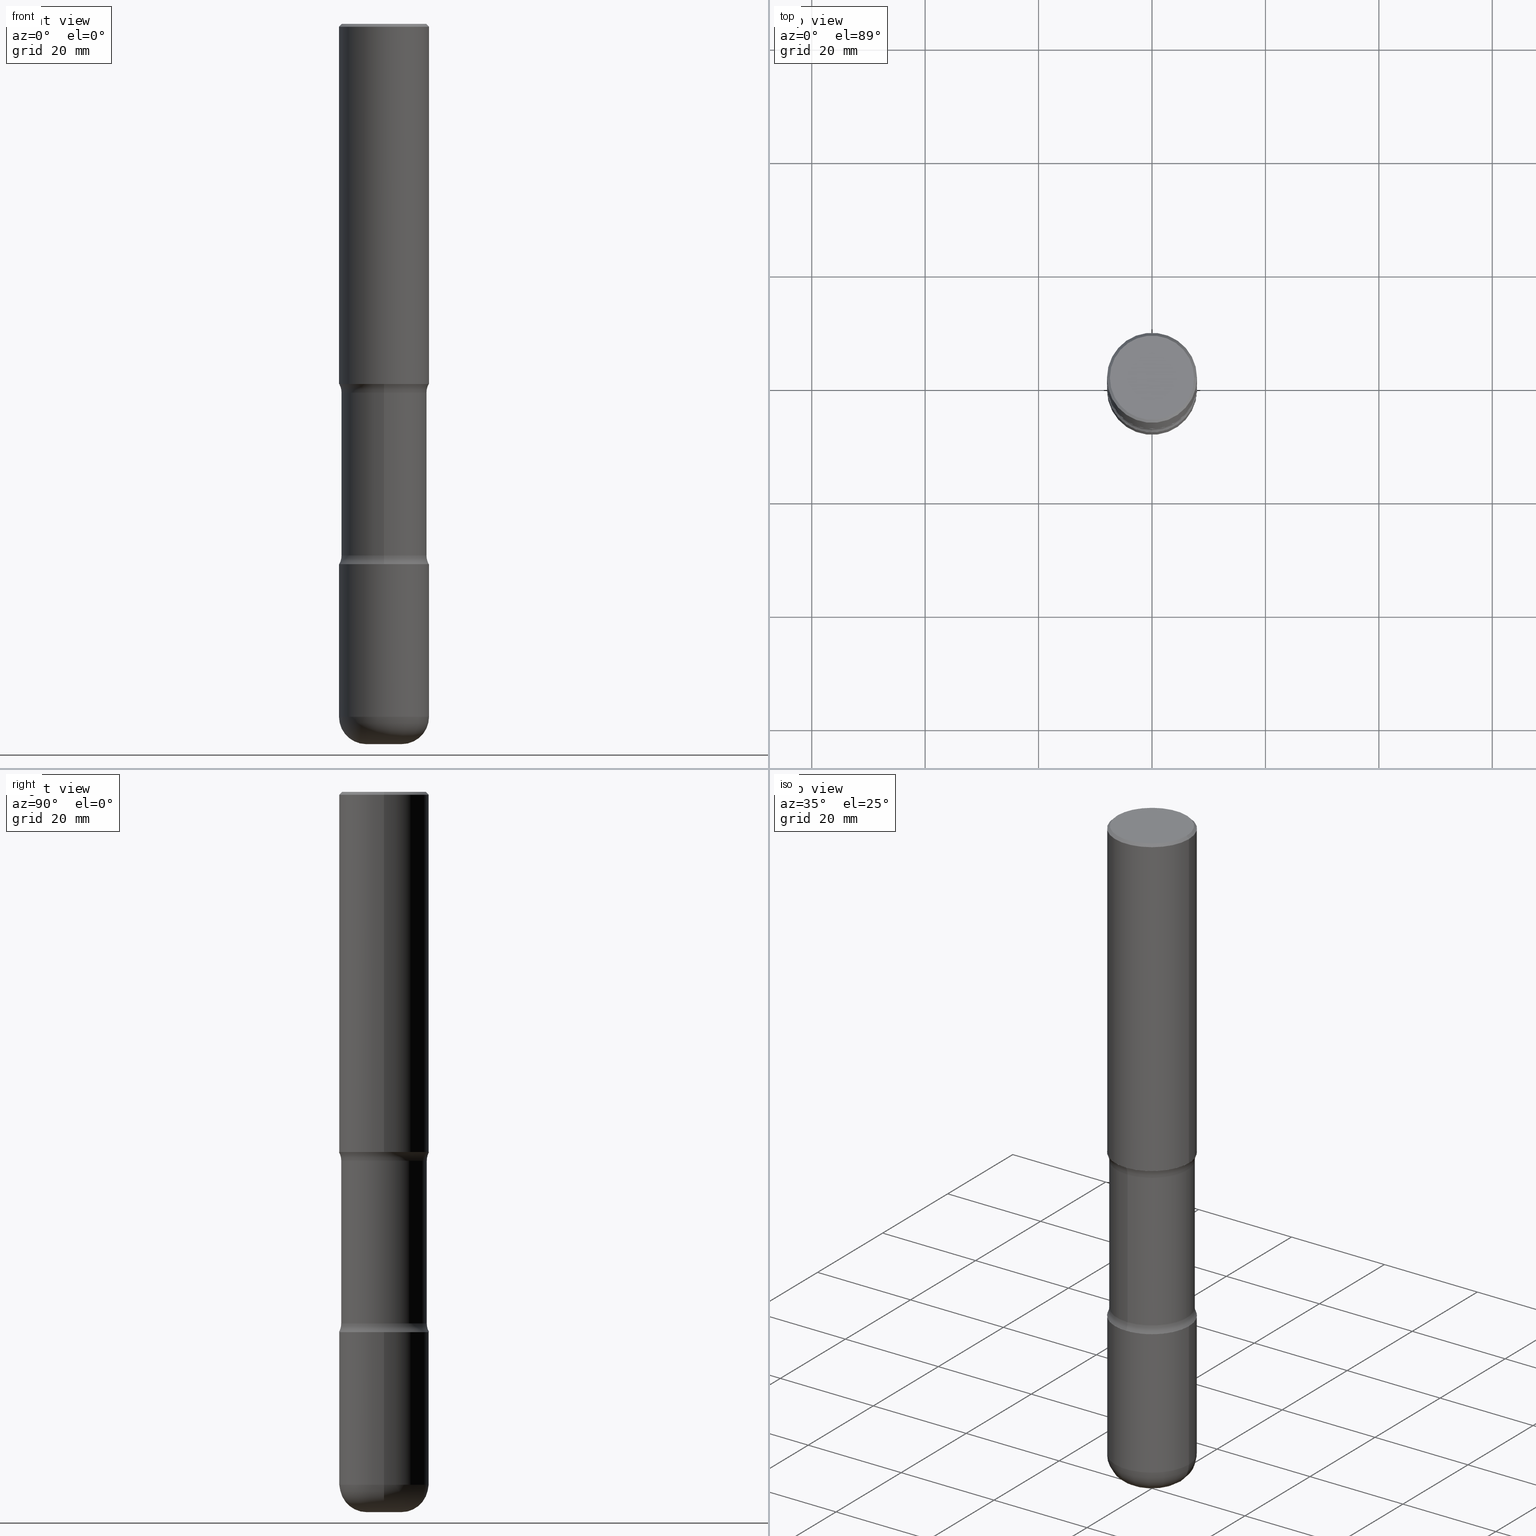
[diagram: canonical four-view strip — front | top / right | iso, engineering-drawing reading convention]
A machine part, canonical four-view strip (front | top / right | iso — engineering-drawing reading convention). The complete STEP part file that produces these views, byte-faithful:
ISO-10303-21;
HEADER;
FILE_DESCRIPTION (( 'STEP AP203' ),
    '1' );
FILE_NAME ('37921.STEP',
    '2024-03-02T01:26:36',
    ( '' ),
    ( '' ),
    'SwSTEP 2.0',
    'SolidWorks 2023',
    '' );
FILE_SCHEMA (( 'CONFIG_CONTROL_DESIGN' ));
ENDSEC;

DATA;
#1 = DIRECTION ( 'NONE',  ( 6.982962677686265133E-15, 1.000000000000000000, -3.680805717779217644E-15 ) ) ;
#2 = EDGE_LOOP ( 'NONE', ( #324, #459, #457, #39 ) ) ;
#3 = CARTESIAN_POINT ( 'NONE',  ( 0.1225000000000003308, -1.831281962223229977E-14, -5.000000000000000000 ) ) ;
#4 = CARTESIAN_POINT ( 'NONE',  ( -1.043851414335219820E-46, 1.490343170380447200E-32, 4.268512490100411279E-18 ) ) ;
#5 = AXIS2_PLACEMENT_3D ( 'NONE', #223, #539, #451 ) ;
#6 = AXIS2_PLACEMENT_3D ( 'NONE', #174, #353, #215 ) ;
#7 = CARTESIAN_POINT ( 'NONE',  ( 4.890937612370289799E-31, -6.982962677686315028E-17, -0.02000000000000006981 ) ) ;
#8 = PERSON_AND_ORGANIZATION ( #476, #208 ) ;
#9 = DIRECTION ( 'NONE',  ( 2.521457479434076939E-29, -3.382661233743975076E-15, -1.000000000000000000 ) ) ;
#10 = PERSON_AND_ORGANIZATION_ROLE ( 'creator' ) ;
#11 = DIRECTION ( 'NONE',  ( -6.982962677686265922E-15, -1.000000000000000000, 3.382661233743974681E-15 ) ) ;
#12 = DIRECTION ( 'NONE',  ( -2.445468806185136597E-29, 3.491481338843145583E-15, 1.000000000000000000 ) ) ;
#13 = DIRECTION ( 'NONE',  ( -2.445468806185136877E-29, 3.491481338843145188E-15, 1.000000000000000000 ) ) ;
#14 = AXIS2_PLACEMENT_3D ( 'NONE', #59, #304, #483 ) ;
#15 = CARTESIAN_POINT ( 'NONE',  ( 2.182175836777050644E-15, 0.3124999999999870104, -3.750000000000000888 ) ) ;
#16 = AXIS2_PLACEMENT_3D ( 'NONE', #446, #17, #171 ) ;
#17 = DIRECTION ( 'NONE',  ( 2.438088387897960049E-29, -3.491481338843145188E-15, -1.000000000000000000 ) ) ;
#18 = DIRECTION ( 'NONE',  ( 0.000000000000000000, 0.000000000000000000, 1.000000000000000000 ) ) ;
#19 = DIRECTION ( 'NONE',  ( 1.000000000000000000, -6.982962677686266711E-15, 0.000000000000000000 ) ) ;
#20 = PLANE ( 'NONE',  #160 ) ;
#21 = PERSON_AND_ORGANIZATION_ROLE ( 'classification_officer' ) ;
#22 = TOROIDAL_SURFACE ( 'NONE', #448, 0.4218750000000001110, 0.1250000000000001388 ) ;
#23 = EDGE_CURVE ( 'NONE', #423, #556, #99, .T. ) ;
#24 = APPROVAL_STATUS ( 'not_yet_approved' ) ;
#25 = DIRECTION ( 'NONE',  ( -2.445468806185136597E-29, 3.491481338843145583E-15, 1.000000000000000000 ) ) ;
#26 = ORIENTED_EDGE ( 'NONE', *, *, #55, .T. ) ;
#27 = AXIS2_PLACEMENT_3D ( 'NONE', #356, #228, #179 ) ;
#28 = CIRCLE ( 'NONE', #109, 0.1250000000000001388 ) ;
#29 = VERTEX_POINT ( 'NONE', #477 ) ;
#30 = DIRECTION ( 'NONE',  ( -2.445468806185136877E-29, 3.491481338843145188E-15, 1.000000000000000000 ) ) ;
#31 = EDGE_CURVE ( 'NONE', #423, #374, #40, .T. ) ;
#32 = EDGE_LOOP ( 'NONE', ( #72, #205, #194, #391 ) ) ;
#33 = DIRECTION ( 'NONE',  ( 2.521457479434076939E-29, -3.382661233743975076E-15, -1.000000000000000000 ) ) ;
#34 = EDGE_LOOP ( 'NONE', ( #375, #253 ) ) ;
#35 = DIRECTION ( 'NONE',  ( -2.445468806185136597E-29, 3.491481338843145583E-15, 1.000000000000000000 ) ) ;
#36 = EDGE_CURVE ( 'NONE', #272, #470, #235, .T. ) ;
#37 = ADVANCED_FACE ( 'NONE', ( #398 ), #502, .T. ) ;
#38 = CONICAL_SURFACE ( 'NONE', #124, 0.3124999999999998890, 0.7853981633974479459 ) ;
#39 = ORIENTED_EDGE ( 'NONE', *, *, #434, .F. ) ;
#40 = CIRCLE ( 'NONE', #169, 0.1899999999999998634 ) ;
#41 = CYLINDRICAL_SURFACE ( 'NONE', #492, 0.3125000000000001665 ) ;
#42 = APPROVAL_PERSON_ORGANIZATION ( #8, #397, #145 ) ;
#43 = ORIENTED_EDGE ( 'NONE', *, *, #302, .F. ) ;
#44 = CARTESIAN_POINT ( 'NONE',  ( -2.894272592809775342E-15, -0.4218750000000130451, -3.689484635215506625 ) ) ;
#45 = CARTESIAN_POINT ( 'NONE',  ( 9.170508023194261117E-29, -1.309305502066179584E-14, -3.749999999999999556 ) ) ;
#46 = AXIS2_PLACEMENT_3D ( 'NONE', #50, #98, #53 ) ;
#47 = EDGE_CURVE ( 'NONE', #464, #296, #472, .T. ) ;
#48 = CARTESIAN_POINT ( 'NONE',  ( 4.890937612370289799E-31, -6.982962677686315028E-17, -0.02000000000000006981 ) ) ;
#49 = PERSON_AND_ORGANIZATION ( #476, #208 ) ;
#50 = CARTESIAN_POINT ( 'NONE',  ( 6.166278489433880529E-29, -9.076584013649411488E-15, -2.560515364784490711 ) ) ;
#51 = DIRECTION ( 'NONE',  ( -2.445468806185136597E-29, 3.491481338843145583E-15, 1.000000000000000000 ) ) ;
#52 = PERSON_AND_ORGANIZATION_ROLE ( 'design_owner' ) ;
#53 = DIRECTION ( 'NONE',  ( 6.982962677686265922E-15, 1.000000000000000000, -3.382661233743975076E-15 ) ) ;
#54 = CC_DESIGN_DATE_AND_TIME_ASSIGNMENT ( #373, #494, ( #473 ) ) ;
#55 = EDGE_CURVE ( 'NONE', #199, #514, #345, .T. ) ;
#56 = DIRECTION ( 'NONE',  ( 1.000000000000000000, -6.982962677686265922E-15, 4.883557194083112340E-29 ) ) ;
#57 = PERSON_AND_ORGANIZATION ( #476, #208 ) ;
#58 = AXIS2_PLACEMENT_3D ( 'NONE', #390, #84, #475 ) ;
#59 = CARTESIAN_POINT ( 'NONE',  ( 2.945937379648955300E-15, 0.4218749999999909517, -2.560515364784492487 ) ) ;
#60 = CIRCLE ( 'NONE', #418, 0.3125000000000002776 ) ;
#61 = FACE_OUTER_BOUND ( 'NONE', #32, .T. ) ;
#62 = CALENDAR_DATE ( 2024, 1, 3 ) ;
#63 = ORIENTED_EDGE ( 'NONE', *, *, #384, .T. ) ;
#64 = CARTESIAN_POINT ( 'NONE',  ( 4.890937612370289799E-31, -6.982962677686315028E-17, -0.02000000000000006981 ) ) ;
#65 = PERSON_AND_ORGANIZATION ( #476, #208 ) ;
#66 = ORIENTED_EDGE ( 'NONE', *, *, #358, .T. ) ;
#67 = PERSON_AND_ORGANIZATION_ROLE ( 'creator' ) ;
#68 = ORIENTED_EDGE ( 'NONE', *, *, #456, .T. ) ;
#69 = VERTEX_POINT ( 'NONE', #527 ) ;
#70 = DIRECTION ( 'NONE',  ( 1.000000000000000000, -6.982962677686266711E-15, 0.000000000000000000 ) ) ;
#71 = EDGE_CURVE ( 'NONE', #322, #243, #320, .T. ) ;
#72 = ORIENTED_EDGE ( 'NONE', *, *, #560, .F. ) ;
#73 = DIRECTION ( 'NONE',  ( 2.521457479434076939E-29, -3.382661233743975076E-15, -1.000000000000000000 ) ) ;
#74 = AXIS2_PLACEMENT_3D ( 'NONE', #262, #178, #474 ) ;
#75 = ORIENTED_EDGE ( 'NONE', *, *, #419, .F. ) ;
#76 = CYLINDRICAL_SURFACE ( 'NONE', #501, 0.2968750000000000000 ) ;
#77 = EDGE_LOOP ( 'NONE', ( #189, #276 ) ) ;
#78 = CARTESIAN_POINT ( 'NONE',  ( -1.043851414335219820E-46, 1.490343170380447200E-32, 4.268512490100411279E-18 ) ) ;
#79 = EDGE_CURVE ( 'NONE', #272, #290, #28, .T. ) ;
#80 = ORIENTED_EDGE ( 'NONE', *, *, #211, .F. ) ;
#81 = CARTESIAN_POINT ( 'NONE',  ( 9.170508023194261117E-29, -1.309305502066179584E-14, -3.749999999999999556 ) ) ;
#82 = CIRCLE ( 'NONE', #305, 0.2968750000000000000 ) ;
#83 = ORIENTED_EDGE ( 'NONE', *, *, #79, .F. ) ;
#84 = DIRECTION ( 'NONE',  ( -2.445468806185136597E-29, 3.491481338843145583E-15, 1.000000000000000000 ) ) ;
#85 = CARTESIAN_POINT ( 'NONE',  ( -0.3125000000000000000, 2.220446049250313081E-15, -1.537167215704658232E-29 ) ) ;
#86 = DIRECTION ( 'NONE',  ( -2.445468806185136877E-29, 3.491481338843145188E-15, 1.000000000000000000 ) ) ;
#87 = DIRECTION ( 'NONE',  ( 1.000000000000000000, -6.982962677686266711E-15, 0.000000000000000000 ) ) ;
#88 = ADVANCED_FACE ( 'NONE', ( #224 ), #294, .F. ) ;
#89 =( NAMED_UNIT ( * ) SI_UNIT ( $, .STERADIAN. ) SOLID_ANGLE_UNIT ( ) );
#90 = CARTESIAN_POINT ( 'NONE',  ( 2.073067044938233492E-15, 0.2968749999999827360, -5.000000000000000888 ) ) ;
#91 = PLANE ( 'NONE',  #16 ) ;
#92 = DIRECTION ( 'NONE',  ( -2.445468806185136597E-29, 3.491481338843145583E-15, 1.000000000000000000 ) ) ;
#93 = CARTESIAN_POINT ( 'NONE',  ( -2.090307983695922804E-15, -0.2968750000000128786, -3.689484635215507069 ) ) ;
#94 = CARTESIAN_POINT ( 'NONE',  ( 9.170508023194261117E-29, -1.309305502066179584E-14, -3.749999999999999556 ) ) ;
#95 = ADVANCED_FACE ( 'NONE', ( #349 ), #91, .F. ) ;
#96 = DIRECTION ( 'NONE',  ( 2.521457479434076939E-29, -3.382661233743975076E-15, -1.000000000000000000 ) ) ;
#97 =( NAMED_UNIT ( * ) PLANE_ANGLE_UNIT ( ) SI_UNIT ( $, .RADIAN. ) );
#98 = DIRECTION ( 'NONE',  ( 2.521457479434076939E-29, -3.382661233743975076E-15, -1.000000000000000000 ) ) ;
#99 = CIRCLE ( 'NONE', #454, 0.1225000000000003308 ) ;
#100 = CARTESIAN_POINT ( 'NONE',  ( -0.3125000000000001665, 2.220446049250314264E-15, -1.537167215704658792E-29 ) ) ;
#101 = AXIS2_PLACEMENT_3D ( 'NONE', #106, #127, #432 ) ;
#102 = FACE_OUTER_BOUND ( 'NONE', #77, .T. ) ;
#103 = VECTOR ( 'NONE', #489, 39.37007874015748143 ) ;
#104 = EDGE_LOOP ( 'NONE', ( #117, #275, #554, #75 ) ) ;
#105 = CC_DESIGN_PERSON_AND_ORGANIZATION_ASSIGNMENT ( #326, #67, ( #236 ) ) ;
#106 = CARTESIAN_POINT ( 'NONE',  ( 0.000000000000000000, 0.000000000000000000, 0.000000000000000000 ) ) ;
#107 = VERTEX_POINT ( 'NONE', #93 ) ;
#108 = CIRCLE ( 'NONE', #292, 0.3124999999999998890 ) ;
#109 = AXIS2_PLACEMENT_3D ( 'NONE', #444, #255, #480 ) ;
#110 = AXIS2_PLACEMENT_3D ( 'NONE', #407, #528, #134 ) ;
#111 = ORIENTED_EDGE ( 'NONE', *, *, #79, .T. ) ;
#112 = ORIENTED_EDGE ( 'NONE', *, *, #417, .F. ) ;
#113 = ORIENTED_EDGE ( 'NONE', *, *, #36, .F. ) ;
#114 = DIRECTION ( 'NONE',  ( -2.445468806185136597E-29, 3.491481338843145583E-15, 1.000000000000000000 ) ) ;
#115 = TOROIDAL_SURFACE ( 'NONE', #46, 0.4218750000000000555, 0.1250000000000000000 ) ;
#116 = AXIS2_PLACEMENT_3D ( 'NONE', #433, #136, #265 ) ;
#117 = ORIENTED_EDGE ( 'NONE', *, *, #151, .T. ) ;
#118 = ADVANCED_FACE ( 'NONE', ( #439 ), #534, .F. ) ;
#119 = FACE_OUTER_BOUND ( 'NONE', #544, .T. ) ;
#120 = ORIENTED_EDGE ( 'NONE', *, *, #23, .T. ) ;
#121 = DIRECTION ( 'NONE',  ( -1.000000000000000000, 7.105427357601003436E-15, 0.000000000000000000 ) ) ;
#122 = ORIENTED_EDGE ( 'NONE', *, *, #553, .T. ) ;
#123 = CARTESIAN_POINT ( 'NONE',  ( 1.232232987248685960E-28, -1.732138156284176685E-14, -5.000000000000000000 ) ) ;
#124 = AXIS2_PLACEMENT_3D ( 'NONE', #48, #218, #270 ) ;
#125 = LINE ( 'NONE', #85, #103 ) ;
#126 = ORIENTED_EDGE ( 'NONE', *, *, #55, .F. ) ;
#127 = DIRECTION ( 'NONE',  ( -2.445468806185136597E-29, 3.491481338843145583E-15, 1.000000000000000000 ) ) ;
#128 = CC_DESIGN_APPROVAL ( #203, ( #352 ) ) ;
#129 = ADVANCED_FACE ( 'NONE', ( #219 ), #438, .T. ) ;
#130 = LENGTH_MEASURE_WITH_UNIT ( LENGTH_MEASURE( 0.02539999999999999897 ), #531 );
#131 = MANIFOLD_SOLID_BREP ( 'Body-Move/Copy2[4]', #557 ) ;
#132 = PLANE ( 'NONE',  #170 ) ;
#133 = CARTESIAN_POINT ( 'NONE',  ( 9.170508023194261117E-29, -1.309305502066179584E-14, -3.749999999999999556 ) ) ;
#134 = DIRECTION ( 'NONE',  ( 6.860497997771529985E-15, 1.000000000000000000, 0.000000000000000000 ) ) ;
#135 = FACE_OUTER_BOUND ( 'NONE', #549, .T. ) ;
#136 = DIRECTION ( 'NONE',  ( 2.521457479434076939E-29, -3.382661233743974681E-15, -1.000000000000000000 ) ) ;
#137 = CIRCLE ( 'NONE', #242, 0.3125000000000001665 ) ;
#138 = EDGE_CURVE ( 'NONE', #514, #455, #530, .T. ) ;
#139 = DIRECTION ( 'NONE',  ( 1.000000000000000000, -6.982962677686262766E-15, 0.000000000000000000 ) ) ;
#140 = CIRCLE ( 'NONE', #110, 0.1250000000000000000 ) ;
#141 = CARTESIAN_POINT ( 'NONE',  ( 1.176270495775050811E-28, -1.679402523983553013E-14, -4.810000000000000497 ) ) ;
#142 = COORDINATED_UNIVERSAL_TIME_OFFSET ( 5, 0, .BEHIND. ) ;
#143 = CARTESIAN_POINT ( 'NONE',  ( 2.073067044938200360E-15, 0.2968749999999871214, -3.689484635215509289 ) ) ;
#144 = DIRECTION ( 'NONE',  ( 2.521457479434076939E-29, -3.382661233743975076E-15, -1.000000000000000000 ) ) ;
#145 = APPROVAL_ROLE ( '' ) ;
#146 = CARTESIAN_POINT ( 'NONE',  ( 9.017921104037724021E-29, -1.288835204215942242E-14, -3.689484635215508401 ) ) ;
#147 = TOROIDAL_SURFACE ( 'NONE', #357, 0.1225000000000003031, 0.1899999999999998912 ) ;
#148 = ORIENTED_EDGE ( 'NONE', *, *, #452, .F. ) ;
#149 = EDGE_LOOP ( 'NONE', ( #120, #150, #233, #382 ) ) ;
#150 = ORIENTED_EDGE ( 'NONE', *, *, #417, .T. ) ;
#151 = EDGE_CURVE ( 'NONE', #374, #467, #227, .T. ) ;
#152 = EDGE_LOOP ( 'NONE', ( #510, #421, #380, #287 ) ) ;
#153 = ADVANCED_FACE ( 'NONE', ( #359 ), #184, .T. ) ;
#154 = CIRCLE ( 'NONE', #334, 0.1225000000000003308 ) ;
#155 = ORIENTED_EDGE ( 'NONE', *, *, #500, .T. ) ;
#156 = ORIENTED_EDGE ( 'NONE', *, *, #311, .F. ) ;
#157 = CARTESIAN_POINT ( 'NONE',  ( 0.3124999999999998890, -2.213735251080466123E-15, -0.02000000000000006981 ) ) ;
#158 = ORIENTED_EDGE ( 'NONE', *, *, #519, .F. ) ;
#159 = DIRECTION ( 'NONE',  ( 1.000000000000000000, -6.982962677686264344E-15, 0.000000000000000000 ) ) ;
#160 = AXIS2_PLACEMENT_3D ( 'NONE', #529, #533, #183 ) ;
#161 = AXIS2_PLACEMENT_3D ( 'NONE', #81, #335, #427 ) ;
#162 = ORIENTED_EDGE ( 'NONE', *, *, #138, .F. ) ;
#163 = DIRECTION ( 'NONE',  ( 1.000000000000000000, -6.860497997771530774E-15, 4.842131541558068249E-29 ) ) ;
#164 = ORIENTED_EDGE ( 'NONE', *, *, #358, .F. ) ;
#165 = CARTESIAN_POINT ( 'NONE',  ( 1.176270495775050811E-28, -1.679402523983553013E-14, -4.810000000000000497 ) ) ;
#166 = EDGE_LOOP ( 'NONE', ( #522, #66, #499, #551 ) ) ;
#167 = DIRECTION ( 'NONE',  ( 2.521457479434076939E-29, -3.382661233743975076E-15, -1.000000000000000000 ) ) ;
#168 = EDGE_CURVE ( 'NONE', #508, #542, #125, .T. ) ;
#169 = AXIS2_PLACEMENT_3D ( 'NONE', #435, #486, #87 ) ;
#170 = AXIS2_PLACEMENT_3D ( 'NONE', #300, #479, #366 ) ;
#171 = DIRECTION ( 'NONE',  ( -1.000000000000000000, 6.982962677686265922E-15, -4.876176775795935793E-29 ) ) ;
#172 = APPROVAL_DATE_TIME ( #490, #397 ) ;
#173 = APPROVAL_PERSON_ORGANIZATION ( #188, #213, #369 ) ;
#174 = CARTESIAN_POINT ( 'NONE',  ( 6.018686173901665994E-29, -8.864728478481826400E-15, -2.499999999999999556 ) ) ;
#175 = APPROVAL_STATUS ( 'not_yet_approved' ) ;
#176 = PLANE ( 'NONE',  #281 ) ;
#177 = EDGE_CURVE ( 'NONE', #296, #464, #60, .T. ) ;
#178 = DIRECTION ( 'NONE',  ( 2.521457479434076939E-29, -3.382661233743975076E-15, -1.000000000000000000 ) ) ;
#179 = DIRECTION ( 'NONE',  ( 6.982962677686266711E-15, 1.000000000000000000, -3.680805717779217644E-15 ) ) ;
#180 = DIRECTION ( 'NONE',  ( 1.000000000000000000, -6.982962677686264344E-15, 0.000000000000000000 ) ) ;
#181 = VECTOR ( 'NONE', #30, 39.37007874015748143 ) ;
#182 = PERSON_AND_ORGANIZATION ( #476, #208 ) ;
#183 = DIRECTION ( 'NONE',  ( 1.000000000000000000, -6.982962677686265922E-15, 4.876176775795935793E-29 ) ) ;
#184 = PLANE ( 'NONE',  #293 ) ;
#185 = CARTESIAN_POINT ( 'NONE',  ( -0.1225000000000003308, -1.558028551674741034E-14, -5.000000000000000000 ) ) ;
#186 = FACE_OUTER_BOUND ( 'NONE', #248, .T. ) ;
#187 = CIRCLE ( 'NONE', #512, 0.3125000000000002220 ) ;
#188 = PERSON_AND_ORGANIZATION ( #476, #208 ) ;
#189 = ORIENTED_EDGE ( 'NONE', *, *, #36, .T. ) ;
#190 = DIRECTION ( 'NONE',  ( 6.982962677686265922E-15, 1.000000000000000000, -3.382661233743975076E-15 ) ) ;
#191 = EDGE_CURVE ( 'NONE', #556, #423, #154, .T. ) ;
#192 = ADVANCED_FACE ( 'NONE', ( #408 ), #20, .F. ) ;
#193 = SECURITY_CLASSIFICATION_LEVEL ( 'unclassified' ) ;
#194 = ORIENTED_EDGE ( 'NONE', *, *, #302, .T. ) ;
#195 = UNCERTAINTY_MEASURE_WITH_UNIT (LENGTH_MEASURE( 1.000000000000000082E-05 ), #312, 'distance_accuracy_value', 'NONE');
#196 = AXIS2_PLACEMENT_3D ( 'NONE', #45, #96, #258 ) ;
#197 = AXIS2_PLACEMENT_3D ( 'NONE', #465, #200, #121 ) ;
#198 = LOCAL_TIME ( 20, 26, 36.00000000000000000, #316 ) ;
#199 = VERTEX_POINT ( 'NONE', #437 ) ;
#200 = DIRECTION ( 'NONE',  ( 7.105427357601001859E-15, 1.000000000000000000, -3.491481338843145583E-15 ) ) ;
#201 = ORIENTED_EDGE ( 'NONE', *, *, #513, .T. ) ;
#202 = DIRECTION ( 'NONE',  ( 6.982962677686266711E-15, 1.000000000000000000, -3.680805717779217644E-15 ) ) ;
#203 = APPROVAL ( #360, 'UNSPECIFIED' ) ;
#204 = DIRECTION ( 'NONE',  ( -2.445468806185136597E-29, 3.491481338843145583E-15, 1.000000000000000000 ) ) ;
#205 = ORIENTED_EDGE ( 'NONE', *, *, #513, .F. ) ;
#206 = CARTESIAN_POINT ( 'NONE',  ( -0.3124999999999998890, 2.112346210000094260E-15, -0.02000000000000006981 ) ) ;
#207 = AXIS2_PLACEMENT_3D ( 'NONE', #44, #163, #425 ) ;
#208 = ORGANIZATION ( 'UNSPECIFIED', 'UNSPECIFIED', '' ) ;
#209 = ORIENTED_EDGE ( 'NONE', *, *, #23, .F. ) ;
#210 = CARTESIAN_POINT ( 'NONE',  ( -0.3125000000000001665, -1.457357919058521389E-14, -4.810000000000000497 ) ) ;
#211 = EDGE_CURVE ( 'NONE', #290, #107, #376, .T. ) ;
#212 = ORIENTED_EDGE ( 'NONE', *, *, #31, .T. ) ;
#213 = APPROVAL ( #24, 'UNSPECIFIED' ) ;
#214 = CYLINDRICAL_SURFACE ( 'NONE', #58, 0.3125000000000001665 ) ;
#215 = DIRECTION ( 'NONE',  ( 6.982962677686265922E-15, 1.000000000000000000, -3.496765431890253764E-15 ) ) ;
#216 = CIRCLE ( 'NONE', #161, 0.3125000000000001665 ) ;
#217 = DATE_AND_TIME ( #395, #307 ) ;
#218 = DIRECTION ( 'NONE',  ( 2.445468806185136597E-29, -3.491481338843145583E-15, -1.000000000000000000 ) ) ;
#219 = FACE_OUTER_BOUND ( 'NONE', #149, .T. ) ;
#220 = FACE_OUTER_BOUND ( 'NONE', #271, .T. ) ;
#221 = DIRECTION ( 'NONE',  ( -2.445468806185136597E-29, 3.491481338843145583E-15, 1.000000000000000000 ) ) ;
#222 = APPLICATION_PROTOCOL_DEFINITION ( 'international standard', 'config_control_design', 1994, #469 ) ;
#223 = CARTESIAN_POINT ( 'NONE',  ( 1.232232987248685960E-28, -1.732138156284176685E-14, -5.000000000000000000 ) ) ;
#224 = FACE_OUTER_BOUND ( 'NONE', #34, .T. ) ;
#225 = AXIS2_PLACEMENT_3D ( 'NONE', #247, #33, #202 ) ;
#226 = CALENDAR_DATE ( 2024, 1, 3 ) ;
#227 = CIRCLE ( 'NONE', #547, 0.3125000000000002220 ) ;
#228 = DIRECTION ( 'NONE',  ( 2.521457479434076939E-29, -3.382661233743975076E-15, -1.000000000000000000 ) ) ;
#229 = PERSON_AND_ORGANIZATION ( #476, #208 ) ;
#230 = ADVANCED_FACE ( 'NONE', ( #135 ), #38, .T. ) ;
#231 = EDGE_LOOP ( 'NONE', ( #112, #559, #212, #158 ) ) ;
#232 = CARTESIAN_POINT ( 'NONE',  ( 0.3125000000000001665, -1.527523085743875418E-14, -3.749999999999999556 ) ) ;
#233 = ORIENTED_EDGE ( 'NONE', *, *, #151, .F. ) ;
#234 = VECTOR ( 'NONE', #309, 39.37007874015748143 ) ;
#235 = CIRCLE ( 'NONE', #196, 0.3125000000000001665 ) ;
#236 = PRODUCT_DEFINITION_FORMATION_WITH_SPECIFIED_SOURCE ( 'ANY', '', #393, .NOT_KNOWN. ) ;
#237 = ADVANCED_FACE ( 'NONE', ( #186 ), #115, .F. ) ;
#238 = ORIENTED_EDGE ( 'NONE', *, *, #419, .T. ) ;
#239 = ORIENTED_EDGE ( 'NONE', *, *, #560, .T. ) ;
#240 = FACE_OUTER_BOUND ( 'NONE', #428, .T. ) ;
#241 = ORIENTED_EDGE ( 'NONE', *, *, #71, .T. ) ;
#242 = AXIS2_PLACEMENT_3D ( 'NONE', #552, #114, #291 ) ;
#243 = VERTEX_POINT ( 'NONE', #488 ) ;
#244 = DIRECTION ( 'NONE',  ( -2.445468806185136597E-29, 3.491481338843145583E-15, 1.000000000000000000 ) ) ;
#245 = CC_DESIGN_PERSON_AND_ORGANIZATION_ASSIGNMENT ( #229, #269, ( #236 ) ) ;
#246 = ORIENTED_EDGE ( 'NONE', *, *, #289, .F. ) ;
#247 = CARTESIAN_POINT ( 'NONE',  ( 6.171273093058203090E-29, -9.069431456984199816E-15, -2.560515364784490711 ) ) ;
#248 = EDGE_LOOP ( 'NONE', ( #156, #239, #385, #43 ) ) ;
#249 = CARTESIAN_POINT ( 'NONE',  ( -2.143905624303545238E-15, -0.3125000000000091593, -2.499999999999998668 ) ) ;
#250 = EDGE_CURVE ( 'NONE', #69, #290, #400, .T. ) ;
#251 = ADVANCED_FACE ( 'NONE', ( #220 ), #317, .T. ) ;
#252 =( GEOMETRIC_REPRESENTATION_CONTEXT ( 3 ) GLOBAL_UNCERTAINTY_ASSIGNED_CONTEXT ( ( #195 ) ) GLOBAL_UNIT_ASSIGNED_CONTEXT ( ( #312, #97, #89 ) ) REPRESENTATION_CONTEXT ( 'NONE', 'WORKASPACE' ) );
#253 = ORIENTED_EDGE ( 'NONE', *, *, #47, .F. ) ;
#254 = DIRECTION ( 'NONE',  ( 6.982962677686266711E-15, 1.000000000000000000, -3.680805717779217644E-15 ) ) ;
#255 = DIRECTION ( 'NONE',  ( -1.000000000000000000, 6.982962677686265922E-15, -4.883557194083112340E-29 ) ) ;
#256 = CARTESIAN_POINT ( 'NONE',  ( 1.222734403092568523E-28, -1.745740669421572989E-14, -5.000000000000000000 ) ) ;
#257 = DIRECTION ( 'NONE',  ( -2.445468806185136597E-29, 3.491481338843145583E-15, 1.000000000000000000 ) ) ;
#258 = DIRECTION ( 'NONE',  ( 6.982962677686265133E-15, 1.000000000000000000, -3.496765431890254947E-15 ) ) ;
#259 = CARTESIAN_POINT ( 'NONE',  ( -0.3124999999999998890, 2.112346210000094260E-15, -0.02000000000000006981 ) ) ;
#260 = DIRECTION ( 'NONE',  ( -2.521457479434076939E-29, 3.382661233743974681E-15, 1.000000000000000000 ) ) ;
#261 = CARTESIAN_POINT ( 'NONE',  ( 2.182175836777019878E-15, 0.3124999999999913958, -2.500000000000000444 ) ) ;
#262 = CARTESIAN_POINT ( 'NONE',  ( 9.022519586318873617E-29, -1.288176675380345821E-14, -3.689484635215508401 ) ) ;
#263 = CARTESIAN_POINT ( 'NONE',  ( 0.000000000000000000, 0.000000000000000000, 0.000000000000000000 ) ) ;
#264 = DIRECTION ( 'NONE',  ( 2.521457479434076939E-29, -3.382661233743975076E-15, -1.000000000000000000 ) ) ;
#265 = DIRECTION ( 'NONE',  ( 6.982962677686265922E-15, 1.000000000000000000, -3.382661233743974681E-15 ) ) ;
#266 = CYLINDRICAL_SURFACE ( 'NONE', #268, 0.3125000000000000000 ) ;
#267 = ADVANCED_FACE ( 'NONE', ( #61 ), #422, .F. ) ;
#268 = AXIS2_PLACEMENT_3D ( 'NONE', #313, #92, #447 ) ;
#269 = PERSON_AND_ORGANIZATION_ROLE ( 'design_supplier' ) ;
#270 = DIRECTION ( 'NONE',  ( -1.000000000000000000, 6.982962677686266711E-15, 0.000000000000000000 ) ) ;
#271 = EDGE_LOOP ( 'NONE', ( #246, #333, #337, #277 ) ) ;
#272 = VERTEX_POINT ( 'NONE', #15 ) ;
#273 = ADVANCED_FACE ( 'NONE', ( #102 ), #176, .F. ) ;
#274 = CIRCLE ( 'NONE', #346, 0.3125000000000002220 ) ;
#275 = ORIENTED_EDGE ( 'NONE', *, *, #545, .T. ) ;
#276 = ORIENTED_EDGE ( 'NONE', *, *, #540, .T. ) ;
#277 = ORIENTED_EDGE ( 'NONE', *, *, #384, .F. ) ;
#278 = CARTESIAN_POINT ( 'NONE',  ( 0.3125000000000001665, -1.897620107661249005E-14, -4.810000000000000497 ) ) ;
#279 = CC_DESIGN_PERSON_AND_ORGANIZATION_ASSIGNMENT ( #65, #21, ( #473 ) ) ;
#280 = EDGE_LOOP ( 'NONE', ( #504, #155, #63, #83 ) ) ;
#281 = AXIS2_PLACEMENT_3D ( 'NONE', #94, #260, #11 ) ;
#282 = DIRECTION ( 'NONE',  ( -2.445468806185136597E-29, 3.491481338843145583E-15, 1.000000000000000000 ) ) ;
#283 = ADVANCED_BREP_SHAPE_REPRESENTATION ( '37921', ( #319, #496, #131, #505 ), #252 ) ;
#284 = CC_DESIGN_APPROVAL ( #213, ( #473 ) ) ;
#285 = ORIENTED_EDGE ( 'NONE', *, *, #500, .F. ) ;
#286 = LINE ( 'NONE', #288, #181 ) ;
#287 = ORIENTED_EDGE ( 'NONE', *, *, #553, .F. ) ;
#288 = CARTESIAN_POINT ( 'NONE',  ( 0.3125000000000001665, -2.182175836776959530E-15, 1.523805242436230636E-29 ) ) ;
#289 = EDGE_CURVE ( 'NONE', #426, #107, #354, .T. ) ;
#290 = VERTEX_POINT ( 'NONE', #143 ) ;
#291 = DIRECTION ( 'NONE',  ( 1.000000000000000000, -6.982962677686265133E-15, 0.000000000000000000 ) ) ;
#292 = AXIS2_PLACEMENT_3D ( 'NONE', #64, #25, #509 ) ;
#293 = AXIS2_PLACEMENT_3D ( 'NONE', #535, #310, #521 ) ;
#294 = PLANE ( 'NONE',  #116 ) ;
#295 = VECTOR ( 'NONE', #13, 39.37007874015748143 ) ;
#296 = VERTEX_POINT ( 'NONE', #261 ) ;
#297 = CARTESIAN_POINT ( 'NONE',  ( 9.017921104037724021E-29, -1.288835204215942242E-14, -3.689484635215508401 ) ) ;
#298 = PRODUCT_DEFINITION_SHAPE ( 'NONE', 'NONE',  #352 ) ;
#299 = APPROVAL_ROLE ( '' ) ;
#300 = CARTESIAN_POINT ( 'NONE',  ( 2.042516583223231356E-15, 0.2924999999999998157, -1.019124035366569212E-15 ) ) ;
#301 = DIRECTION ( 'NONE',  ( 1.000000000000000000, -6.982962677686265133E-15, 0.000000000000000000 ) ) ;
#302 = EDGE_CURVE ( 'NONE', #69, #296, #368, .T. ) ;
#303 = LINE ( 'NONE', #259, #329 ) ;
#304 = DIRECTION ( 'NONE',  ( -1.000000000000000000, 6.982962677686265922E-15, -4.883557194083112340E-29 ) ) ;
#305 = AXIS2_PLACEMENT_3D ( 'NONE', #297, #344, #1 ) ;
#306 = CARTESIAN_POINT ( 'NONE',  ( 0.3124999999999998890, -2.213735251080466123E-15, -0.02000000000000006981 ) ) ;
#307 = LOCAL_TIME ( 20, 26, 36.00000000000000000, #536 ) ;
#308 = LINE ( 'NONE', #100, #295 ) ;
#309 = DIRECTION ( 'NONE',  ( 2.521457479434076939E-29, -3.382661233743974681E-15, -1.000000000000000000 ) ) ;
#310 = DIRECTION ( 'NONE',  ( 2.438088387897960049E-29, -3.491481338843145188E-15, -1.000000000000000000 ) ) ;
#311 = EDGE_CURVE ( 'NONE', #426, #69, #543, .T. ) ;
#312 =( CONVERSION_BASED_UNIT ( 'INCH', #130 ) LENGTH_UNIT ( ) NAMED_UNIT ( #458 ) );
#313 = CARTESIAN_POINT ( 'NONE',  ( 0.000000000000000000, 0.000000000000000000, 0.000000000000000000 ) ) ;
#314 = ADVANCED_FACE ( 'NONE', ( #351 ), #266, .T. ) ;
#315 = CARTESIAN_POINT ( 'NONE',  ( 6.018686173901665994E-29, -8.864728478481826400E-15, -2.499999999999999556 ) ) ;
#316 = COORDINATED_UNIVERSAL_TIME_OFFSET ( 5, 0, .BEHIND. ) ;
#317 = CYLINDRICAL_SURFACE ( 'NONE', #5, 0.2968750000000000000 ) ;
#318 = CIRCLE ( 'NONE', #197, 0.1899999999999998634 ) ;
#319 = MANIFOLD_SOLID_BREP ( 'Body-Move/Copy2[1]', #370 ) ;
#320 = CIRCLE ( 'NONE', #388, 0.3125000000000001665 ) ;
#321 = EDGE_CURVE ( 'NONE', #29, #508, #187, .T. ) ;
#322 = VERTEX_POINT ( 'NONE', #232 ) ;
#323 = CYLINDRICAL_SURFACE ( 'NONE', #101, 0.3125000000000000000 ) ;
#324 = ORIENTED_EDGE ( 'NONE', *, *, #321, .T. ) ;
#325 = AXIS2_PLACEMENT_3D ( 'NONE', #403, #9, #362 ) ;
#326 = PERSON_AND_ORGANIZATION ( #476, #208 ) ;
#327 = EDGE_LOOP ( 'NONE', ( #516, #164 ) ) ;
#328 = AXIS2_PLACEMENT_3D ( 'NONE', #141, #51, #56 ) ;
#329 = VECTOR ( 'NONE', #445, 39.37007874015748143 ) ;
#330 = ADVANCED_FACE ( 'NONE', ( #526 ), #132, .F. ) ;
#331 = ORIENTED_EDGE ( 'NONE', *, *, #191, .F. ) ;
#332 = FACE_OUTER_BOUND ( 'NONE', #104, .T. ) ;
#333 = ORIENTED_EDGE ( 'NONE', *, *, #311, .T. ) ;
#334 = AXIS2_PLACEMENT_3D ( 'NONE', #538, #491, #139 ) ;
#335 = DIRECTION ( 'NONE',  ( 2.521457479434076939E-29, -3.382661233743975076E-15, -1.000000000000000000 ) ) ;
#336 = LOCAL_TIME ( 20, 26, 36.00000000000000000, #142 ) ;
#337 = ORIENTED_EDGE ( 'NONE', *, *, #250, .T. ) ;
#338 = EDGE_CURVE ( 'NONE', #455, #542, #108, .T. ) ;
#339 = DIRECTION ( 'NONE',  ( 1.000000000000000000, -6.982962677686266711E-15, 4.876067333457692840E-29 ) ) ;
#340 = ORIENTED_EDGE ( 'NONE', *, *, #250, .F. ) ;
#341 = FACE_OUTER_BOUND ( 'NONE', #231, .T. ) ;
#342 = DIRECTION ( 'NONE',  ( 1.000000000000000000, -6.982962677686262766E-15, 0.000000000000000000 ) ) ;
#343 = EDGE_LOOP ( 'NONE', ( #209, #331 ) ) ;
#344 = DIRECTION ( 'NONE',  ( 2.521457479434076939E-29, -3.382661233743975076E-15, -1.000000000000000000 ) ) ;
#345 = CIRCLE ( 'NONE', #378, 0.2924999999999998157 ) ;
#346 = AXIS2_PLACEMENT_3D ( 'NONE', #497, #506, #70 ) ;
#347 = VECTOR ( 'NONE', #485, 39.37007874015748143 ) ;
#348 = APPLICATION_CONTEXT ( 'configuration controlled 3d designs of mechanical parts and assemblies' ) ;
#349 = FACE_OUTER_BOUND ( 'NONE', #424, .T. ) ;
#350 = CALENDAR_DATE ( 2024, 1, 3 ) ;
#351 = FACE_OUTER_BOUND ( 'NONE', #166, .T. ) ;
#352 = PRODUCT_DEFINITION ( 'UNKNOWN', '', #236, #367 ) ;
#353 = DIRECTION ( 'NONE',  ( 2.521457479434076939E-29, -3.382661233743975076E-15, -1.000000000000000000 ) ) ;
#354 = LINE ( 'NONE', #414, #436 ) ;
#355 = DIRECTION ( 'NONE',  ( -1.000000000000000000, 6.982962677686266711E-15, 0.000000000000000000 ) ) ;
#356 = CARTESIAN_POINT ( 'NONE',  ( 6.171273093058203090E-29, -9.069431456984199816E-15, -2.560515364784490711 ) ) ;
#357 = AXIS2_PLACEMENT_3D ( 'NONE', #165, #282, #463 ) ;
#358 = EDGE_CURVE ( 'NONE', #508, #29, #274, .T. ) ;
#359 = FACE_OUTER_BOUND ( 'NONE', #343, .T. ) ;
#360 = APPROVAL_STATUS ( 'not_yet_approved' ) ;
#361 = ADVANCED_FACE ( 'NONE', ( #240 ), #22, .F. ) ;
#362 = DIRECTION ( 'NONE',  ( 6.982962677686265922E-15, 1.000000000000000000, -3.382661233743975076E-15 ) ) ;
#363 = DIRECTION ( 'NONE',  ( 6.982962677686265922E-15, 1.000000000000000000, -3.496765431890253764E-15 ) ) ;
#364 = DIRECTION ( 'NONE',  ( 6.982962677686265133E-15, 1.000000000000000000, -3.680805717779217644E-15 ) ) ;
#365 = SHAPE_DEFINITION_REPRESENTATION ( #298, #283 ) ;
#366 = DIRECTION ( 'NONE',  ( -1.000000000000000000, 6.982962677686265922E-15, -4.876176775795935793E-29 ) ) ;
#367 = DESIGN_CONTEXT ( 'detailed design', #469, 'design' ) ;
#368 = CIRCLE ( 'NONE', #14, 0.1250000000000000000 ) ;
#369 = APPROVAL_ROLE ( '' ) ;
#370 = CLOSED_SHELL ( 'NONE', ( #404, #129, #153, #481, #443, #95 ) ) ;
#371 = ORIENTED_EDGE ( 'NONE', *, *, #452, .T. ) ;
#372 = FACE_OUTER_BOUND ( 'NONE', #2, .T. ) ;
#373 = DATE_AND_TIME ( #415, #440 ) ;
#374 = VERTEX_POINT ( 'NONE', #278 ) ;
#375 = ORIENTED_EDGE ( 'NONE', *, *, #177, .F. ) ;
#376 = CIRCLE ( 'NONE', #482, 0.2968750000000000000 ) ;
#377 = ADVANCED_FACE ( 'NONE', ( #372 ), #323, .T. ) ;
#378 = AXIS2_PLACEMENT_3D ( 'NONE', #4, #221, #401 ) ;
#379 = LOCAL_TIME ( 20, 26, 36.00000000000000000, #541 ) ;
#380 = ORIENTED_EDGE ( 'NONE', *, *, #338, .T. ) ;
#381 = DIRECTION ( 'NONE',  ( 1.000000000000000000, -6.982962677686266711E-15, 4.876176775795935232E-29 ) ) ;
#382 = ORIENTED_EDGE ( 'NONE', *, *, #31, .F. ) ;
#383 = CARTESIAN_POINT ( 'NONE',  ( 0.2924999999999998157, -2.110215457714318748E-15, 4.268512490114932791E-18 ) ) ;
#384 = EDGE_CURVE ( 'NONE', #107, #290, #82, .T. ) ;
#385 = ORIENTED_EDGE ( 'NONE', *, *, #47, .T. ) ;
#386 = AXIS2_PLACEMENT_3D ( 'NONE', #511, #35, #471 ) ;
#387 = CARTESIAN_POINT ( 'NONE',  ( -2.143905624303512894E-15, -0.3125000000000132672, -3.749999999999998668 ) ) ;
#388 = AXIS2_PLACEMENT_3D ( 'NONE', #133, #12, #301 ) ;
#389 = ORIENTED_EDGE ( 'NONE', *, *, #519, .T. ) ;
#390 = CARTESIAN_POINT ( 'NONE',  ( 0.000000000000000000, 0.000000000000000000, 0.000000000000000000 ) ) ;
#391 = ORIENTED_EDGE ( 'NONE', *, *, #177, .T. ) ;
#392 = CARTESIAN_POINT ( 'NONE',  ( 0.3125000000000000000, -2.182175836776958347E-15, 1.523805242436230075E-29 ) ) ;
#393 = PRODUCT ( '37921', '37921', '', ( #399 ) ) ;
#394 = DIRECTION ( 'NONE',  ( 2.445468806185136597E-29, -3.491481338843145583E-15, -1.000000000000000000 ) ) ;
#395 = CALENDAR_DATE ( 2024, 1, 3 ) ;
#396 = CIRCLE ( 'NONE', #453, 0.2924999999999998157 ) ;
#397 = APPROVAL ( #175, 'UNSPECIFIED' ) ;
#398 = FACE_OUTER_BOUND ( 'NONE', #152, .T. ) ;
#399 = MECHANICAL_CONTEXT ( 'NONE', #348, 'mechanical' ) ;
#400 = LINE ( 'NONE', #90, #234 ) ;
#401 = DIRECTION ( 'NONE',  ( 1.000000000000000000, -6.982962677686266711E-15, 4.876067333457692840E-29 ) ) ;
#402 = DIRECTION ( 'NONE',  ( 1.000000000000000000, 0.000000000000000000, 0.000000000000000000 ) ) ;
#403 = CARTESIAN_POINT ( 'NONE',  ( 6.166278489433880529E-29, -9.076584013649411488E-15, -2.560515364784490711 ) ) ;
#404 = ADVANCED_FACE ( 'NONE', ( #332 ), #214, .T. ) ;
#405 = EDGE_CURVE ( 'NONE', #542, #455, #523, .T. ) ;
#406 = DIRECTION ( 'NONE',  ( -2.445468806185136597E-29, 3.491481338843145583E-15, 1.000000000000000000 ) ) ;
#407 = CARTESIAN_POINT ( 'NONE',  ( -2.894272592809803347E-15, -0.4218750000000091593, -2.560515364784489378 ) ) ;
#408 = FACE_OUTER_BOUND ( 'NONE', #327, .T. ) ;
#409 = CIRCLE ( 'NONE', #207, 0.1250000000000001388 ) ;
#410 = CARTESIAN_POINT ( 'NONE',  ( 1.176270495775050811E-28, -1.679402523983553013E-14, -4.810000000000000497 ) ) ;
#411 = DATE_TIME_ROLE ( 'creation_date' ) ;
#412 = CARTESIAN_POINT ( 'NONE',  ( 6.113672015462840371E-29, -8.728703347107863365E-15, -2.499999999999999556 ) ) ;
#413 = EDGE_LOOP ( 'NONE', ( #201, #416, #80, #340 ) ) ;
#414 = CARTESIAN_POINT ( 'NONE',  ( -2.036710343088299976E-15, -0.2968750000000173195, -4.999999999999999112 ) ) ;
#415 = CALENDAR_DATE ( 2024, 1, 3 ) ;
#416 = ORIENTED_EDGE ( 'NONE', *, *, #289, .T. ) ;
#417 = EDGE_CURVE ( 'NONE', #556, #467, #318, .T. ) ;
#418 = AXIS2_PLACEMENT_3D ( 'NONE', #315, #144, #363 ) ;
#419 = EDGE_CURVE ( 'NONE', #374, #322, #286, .T. ) ;
#420 = PRODUCT_RELATED_PRODUCT_CATEGORY ( 'detail', '', ( #393 ) ) ;
#421 = ORIENTED_EDGE ( 'NONE', *, *, #138, .T. ) ;
#422 = TOROIDAL_SURFACE ( 'NONE', #325, 0.4218750000000000555, 0.1250000000000000000 ) ;
#423 = VERTEX_POINT ( 'NONE', #3 ) ;
#424 = EDGE_LOOP ( 'NONE', ( #241, #371 ) ) ;
#425 = DIRECTION ( 'NONE',  ( 6.860497997771529985E-15, 1.000000000000000000, 0.000000000000000000 ) ) ;
#426 = VERTEX_POINT ( 'NONE', #524 ) ;
#427 = DIRECTION ( 'NONE',  ( 6.982962677686265133E-15, 1.000000000000000000, -3.496765431890254947E-15 ) ) ;
#428 = EDGE_LOOP ( 'NONE', ( #285, #113, #111, #462 ) ) ;
#429 = VECTOR ( 'NONE', #86, 39.37007874015748143 ) ;
#430 = LINE ( 'NONE', #392, #429 ) ;
#431 = ORIENTED_EDGE ( 'NONE', *, *, #545, .F. ) ;
#432 = DIRECTION ( 'NONE',  ( 1.000000000000000000, -6.982962677686266711E-15, 4.876176775795936353E-29 ) ) ;
#433 = CARTESIAN_POINT ( 'NONE',  ( 6.113672015462840371E-29, -8.728703347107863365E-15, -2.499999999999999556 ) ) ;
#434 = EDGE_CURVE ( 'NONE', #29, #455, #430, .T. ) ;
#435 = CARTESIAN_POINT ( 'NONE',  ( 0.1225000000000003031, -1.764943816785210001E-14, -4.810000000000000497 ) ) ;
#436 = VECTOR ( 'NONE', #537, 39.37007874015748143 ) ;
#437 = CARTESIAN_POINT ( 'NONE',  ( -0.2924999999999998157, 2.077431396611663005E-15, 4.268512490086005323E-18 ) ) ;
#438 = TOROIDAL_SURFACE ( 'NONE', #328, 0.1225000000000003031, 0.1899999999999998912 ) ;
#439 = FACE_OUTER_BOUND ( 'NONE', #280, .T. ) ;
#440 = LOCAL_TIME ( 20, 26, 36.00000000000000000, #503 ) ;
#441 = APPLICATION_PROTOCOL_DEFINITION ( 'international standard', 'config_control_design', 1994, #348 ) ;
#442 = DIRECTION ( 'NONE',  ( -2.445468806185136597E-29, 3.491481338843145583E-15, 1.000000000000000000 ) ) ;
#443 = ADVANCED_FACE ( 'NONE', ( #119 ), #41, .T. ) ;
#444 = CARTESIAN_POINT ( 'NONE',  ( 2.945937379648984488E-15, 0.4218749999999872324, -3.689484635215510178 ) ) ;
#445 = DIRECTION ( 'NONE',  ( -0.7071067811865472397, 2.468850131082253905E-15, -0.7071067811865477948 ) ) ;
#446 = CARTESIAN_POINT ( 'NONE',  ( 9.170508023194261117E-29, -1.309305502066179584E-14, -3.749999999999999556 ) ) ;
#447 = DIRECTION ( 'NONE',  ( 1.000000000000000000, -6.982962677686266711E-15, 4.876176775795936353E-29 ) ) ;
#448 = AXIS2_PLACEMENT_3D ( 'NONE', #460, #73, #190 ) ;
#449 = AXIS2_PLACEMENT_3D ( 'NONE', #7, #394, #355 ) ;
#450 = CC_DESIGN_SECURITY_CLASSIFICATION ( #473, ( #236 ) ) ;
#451 = DIRECTION ( 'NONE',  ( 6.982962677686266711E-15, 1.000000000000000000, -3.680805717779217644E-15 ) ) ;
#452 = EDGE_CURVE ( 'NONE', #243, #322, #137, .T. ) ;
#453 = AXIS2_PLACEMENT_3D ( 'NONE', #78, #244, #339 ) ;
#454 = AXIS2_PLACEMENT_3D ( 'NONE', #256, #204, #342 ) ;
#455 = VERTEX_POINT ( 'NONE', #157 ) ;
#456 = EDGE_CURVE ( 'NONE', #514, #199, #396, .T. ) ;
#457 = ORIENTED_EDGE ( 'NONE', *, *, #338, .F. ) ;
#458 = DIMENSIONAL_EXPONENTS ( 1.000000000000000000, 0.000000000000000000, 0.000000000000000000, 0.000000000000000000, 0.000000000000000000, 0.000000000000000000, 0.000000000000000000 ) ;
#459 = ORIENTED_EDGE ( 'NONE', *, *, #168, .T. ) ;
#460 = CARTESIAN_POINT ( 'NONE',  ( 9.022519586318873617E-29, -1.288176675380345821E-14, -3.689484635215508401 ) ) ;
#461 = AXIS2_PLACEMENT_3D ( 'NONE', #517, #555, #159 ) ;
#462 = ORIENTED_EDGE ( 'NONE', *, *, #211, .T. ) ;
#463 = DIRECTION ( 'NONE',  ( 1.000000000000000000, -6.982962677686265922E-15, 4.883557194083112340E-29 ) ) ;
#464 = VERTEX_POINT ( 'NONE', #249 ) ;
#465 = CARTESIAN_POINT ( 'NONE',  ( -0.1225000000000003031, -1.592361038852940387E-14, -4.810000000000000497 ) ) ;
#466 = CC_DESIGN_PERSON_AND_ORGANIZATION_ASSIGNMENT ( #57, #52, ( #393 ) ) ;
#467 = VERTEX_POINT ( 'NONE', #210 ) ;
#468 = CARTESIAN_POINT ( 'NONE',  ( 0.000000000000000000, 0.000000000000000000, 0.000000000000000000 ) ) ;
#469 = APPLICATION_CONTEXT ( 'configuration controlled 3d designs of mechanical parts and assemblies' ) ;
#470 = VERTEX_POINT ( 'NONE', #387 ) ;
#471 = DIRECTION ( 'NONE',  ( 1.000000000000000000, -6.982962677686266711E-15, 0.000000000000000000 ) ) ;
#472 = CIRCLE ( 'NONE', #6, 0.3125000000000002776 ) ;
#473 = SECURITY_CLASSIFICATION ( '', '', #193 ) ;
#474 = DIRECTION ( 'NONE',  ( 6.982962677686265922E-15, 1.000000000000000000, -3.382661233743975076E-15 ) ) ;
#475 = DIRECTION ( 'NONE',  ( 1.000000000000000000, -6.982962677686266711E-15, 4.876176775795935232E-29 ) ) ;
#476 = PERSON ( 'UNSPECIFIED', 'UNSPECIFIED', 'UNSPECIFIED', ('UNSPECIFIED'), ('UNSPECIFIED'), ('UNSPECIFIED') ) ;
#477 = CARTESIAN_POINT ( 'NONE',  ( 0.3125000000000002220, -1.091087918388482329E-14, -2.499999999999999556 ) ) ;
#478 = APPROVAL_DATE_TIME ( #217, #203 ) ;
#479 = DIRECTION ( 'NONE',  ( 2.438088387897960049E-29, -3.491481338843145188E-15, -1.000000000000000000 ) ) ;
#480 = DIRECTION ( 'NONE',  ( -6.982962677686266711E-15, -1.000000000000000000, 0.000000000000000000 ) ) ;
#481 = ADVANCED_FACE ( 'NONE', ( #341 ), #147, .T. ) ;
#482 = AXIS2_PLACEMENT_3D ( 'NONE', #146, #264, #364 ) ;
#483 = DIRECTION ( 'NONE',  ( -6.982962677686266711E-15, -1.000000000000000000, 0.000000000000000000 ) ) ;
#484 = APPROVAL_PERSON_ORGANIZATION ( #182, #203, #299 ) ;
#485 = DIRECTION ( 'NONE',  ( 0.7071067811865472397, -7.319954787623254468E-15, -0.7071067811865477948 ) ) ;
#486 = DIRECTION ( 'NONE',  ( -6.982962677686266711E-15, -1.000000000000000000, 3.491481338843145583E-15 ) ) ;
#487 = DATE_AND_TIME ( #226, #336 ) ;
#488 = CARTESIAN_POINT ( 'NONE',  ( -0.3125000000000001665, -1.272309408099834754E-14, -3.749999999999999556 ) ) ;
#489 = DIRECTION ( 'NONE',  ( -2.445468806185136877E-29, 3.491481338843145188E-15, 1.000000000000000000 ) ) ;
#490 = DATE_AND_TIME ( #350, #198 ) ;
#491 = DIRECTION ( 'NONE',  ( -2.445468806185136597E-29, 3.491481338843145583E-15, 1.000000000000000000 ) ) ;
#492 = AXIS2_PLACEMENT_3D ( 'NONE', #468, #257, #381 ) ;
#493 = CC_DESIGN_DATE_AND_TIME_ASSIGNMENT ( #487, #411, ( #352 ) ) ;
#494 = DATE_TIME_ROLE ( 'classification_date' ) ;
#495 = EDGE_LOOP ( 'NONE', ( #26, #68 ) ) ;
#496 = MANIFOLD_SOLID_BREP ( 'Body-Move/Copy2[2]', #525 ) ;
#497 = CARTESIAN_POINT ( 'NONE',  ( 6.113672015462840371E-29, -8.728703347107863365E-15, -2.499999999999999556 ) ) ;
#498 = ADVANCED_FACE ( 'NONE', ( #558 ), #76, .T. ) ;
#499 = ORIENTED_EDGE ( 'NONE', *, *, #434, .T. ) ;
#500 = EDGE_CURVE ( 'NONE', #470, #107, #409, .T. ) ;
#501 = AXIS2_PLACEMENT_3D ( 'NONE', #123, #167, #254 ) ;
#502 = CONICAL_SURFACE ( 'NONE', #449, 0.3124999999999998890, 0.7853981633974479459 ) ;
#503 = COORDINATED_UNIVERSAL_TIME_OFFSET ( 5, 0, .BEHIND. ) ;
#504 = ORIENTED_EDGE ( 'NONE', *, *, #540, .F. ) ;
#505 = AXIS2_PLACEMENT_3D ( 'NONE', #263, #18, #402 ) ;
#506 = DIRECTION ( 'NONE',  ( -2.445468806185136597E-29, 3.491481338843145583E-15, 1.000000000000000000 ) ) ;
#507 = APPROVAL_DATE_TIME ( #548, #213 ) ;
#508 = VERTEX_POINT ( 'NONE', #515 ) ;
#509 = DIRECTION ( 'NONE',  ( 1.000000000000000000, -6.982962677686266711E-15, 0.000000000000000000 ) ) ;
#510 = ORIENTED_EDGE ( 'NONE', *, *, #456, .F. ) ;
#511 = CARTESIAN_POINT ( 'NONE',  ( 4.890937612370289799E-31, -6.982962677686315028E-17, -0.02000000000000006981 ) ) ;
#512 = AXIS2_PLACEMENT_3D ( 'NONE', #412, #442, #19 ) ;
#513 = EDGE_CURVE ( 'NONE', #69, #426, #532, .T. ) ;
#514 = VERTEX_POINT ( 'NONE', #383 ) ;
#515 = CARTESIAN_POINT ( 'NONE',  ( -0.3125000000000002220, -2.178820437692046306E-15, -2.499999999999999556 ) ) ;
#516 = ORIENTED_EDGE ( 'NONE', *, *, #321, .F. ) ;
#517 = CARTESIAN_POINT ( 'NONE',  ( 1.176270495775050811E-28, -1.679402523983553013E-14, -4.810000000000000497 ) ) ;
#518 = ORIENTED_EDGE ( 'NONE', *, *, #405, .T. ) ;
#519 = EDGE_CURVE ( 'NONE', #467, #374, #546, .T. ) ;
#520 = CC_DESIGN_PERSON_AND_ORGANIZATION_ASSIGNMENT ( #49, #10, ( #352 ) ) ;
#521 = DIRECTION ( 'NONE',  ( -1.000000000000000000, 6.982962677686265922E-15, -4.876176775795935793E-29 ) ) ;
#522 = ORIENTED_EDGE ( 'NONE', *, *, #168, .F. ) ;
#523 = CIRCLE ( 'NONE', #386, 0.3124999999999998890 ) ;
#524 = CARTESIAN_POINT ( 'NONE',  ( -2.090307983695953569E-15, -0.2968750000000091038, -2.560515364784489822 ) ) ;
#525 = CLOSED_SHELL ( 'NONE', ( #377, #37, #230, #330, #192, #314 ) ) ;
#526 = FACE_OUTER_BOUND ( 'NONE', #495, .T. ) ;
#527 = CARTESIAN_POINT ( 'NONE',  ( 2.073067044938171961E-15, 0.2968749999999909517, -2.560515364784492043 ) ) ;
#528 = DIRECTION ( 'NONE',  ( 1.000000000000000000, -6.860497997771530774E-15, 4.842131541558068249E-29 ) ) ;
#529 = CARTESIAN_POINT ( 'NONE',  ( 6.113672015462840371E-29, -8.728703347107863365E-15, -2.499999999999999556 ) ) ;
#530 = LINE ( 'NONE', #306, #347 ) ;
#531 =( LENGTH_UNIT ( ) NAMED_UNIT ( * ) SI_UNIT ( $, .METRE. ) );
#532 = CIRCLE ( 'NONE', #225, 0.2968750000000000000 ) ;
#533 = DIRECTION ( 'NONE',  ( -2.438088387897960049E-29, 3.491481338843145188E-15, 1.000000000000000000 ) ) ;
#534 = TOROIDAL_SURFACE ( 'NONE', #74, 0.4218750000000001110, 0.1250000000000001388 ) ;
#535 = CARTESIAN_POINT ( 'NONE',  ( 1.222734403092568523E-28, -1.745740669421572989E-14, -5.000000000000000000 ) ) ;
#536 = COORDINATED_UNIVERSAL_TIME_OFFSET ( 5, 0, .BEHIND. ) ;
#537 = DIRECTION ( 'NONE',  ( 2.521457479434076939E-29, -3.382661233743974681E-15, -1.000000000000000000 ) ) ;
#538 = CARTESIAN_POINT ( 'NONE',  ( 1.222734403092568523E-28, -1.745740669421572989E-14, -5.000000000000000000 ) ) ;
#539 = DIRECTION ( 'NONE',  ( 2.521457479434076939E-29, -3.382661233743975076E-15, -1.000000000000000000 ) ) ;
#540 = EDGE_CURVE ( 'NONE', #470, #272, #216, .T. ) ;
#541 = COORDINATED_UNIVERSAL_TIME_OFFSET ( 5, 0, .BEHIND. ) ;
#542 = VERTEX_POINT ( 'NONE', #206 ) ;
#543 = CIRCLE ( 'NONE', #27, 0.2968750000000000000 ) ;
#544 = EDGE_LOOP ( 'NONE', ( #431, #389, #238, #148 ) ) ;
#545 = EDGE_CURVE ( 'NONE', #467, #243, #308, .T. ) ;
#546 = CIRCLE ( 'NONE', #461, 0.3125000000000002220 ) ;
#547 = AXIS2_PLACEMENT_3D ( 'NONE', #410, #406, #180 ) ;
#548 = DATE_AND_TIME ( #62, #379 ) ;
#549 = EDGE_LOOP ( 'NONE', ( #162, #126, #122, #518 ) ) ;
#550 = CC_DESIGN_APPROVAL ( #397, ( #236 ) ) ;
#551 = ORIENTED_EDGE ( 'NONE', *, *, #405, .F. ) ;
#552 = CARTESIAN_POINT ( 'NONE',  ( 9.170508023194261117E-29, -1.309305502066179584E-14, -3.749999999999999556 ) ) ;
#553 = EDGE_CURVE ( 'NONE', #199, #542, #303, .T. ) ;
#554 = ORIENTED_EDGE ( 'NONE', *, *, #71, .F. ) ;
#555 = DIRECTION ( 'NONE',  ( -2.445468806185136597E-29, 3.491481338843145583E-15, 1.000000000000000000 ) ) ;
#556 = VERTEX_POINT ( 'NONE', #185 ) ;
#557 = CLOSED_SHELL ( 'NONE', ( #498, #118, #237, #267, #88, #273, #361, #251 ) ) ;
#558 = FACE_OUTER_BOUND ( 'NONE', #413, .T. ) ;
#559 = ORIENTED_EDGE ( 'NONE', *, *, #191, .T. ) ;
#560 = EDGE_CURVE ( 'NONE', #426, #464, #140, .T. ) ;
ENDSEC;
END-ISO-10303-21;
